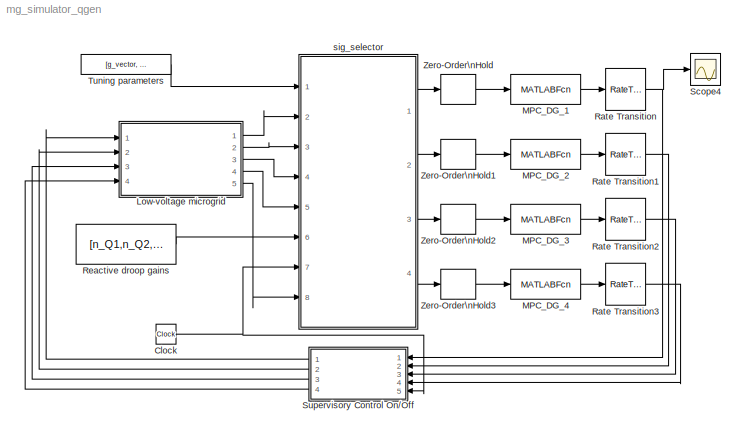
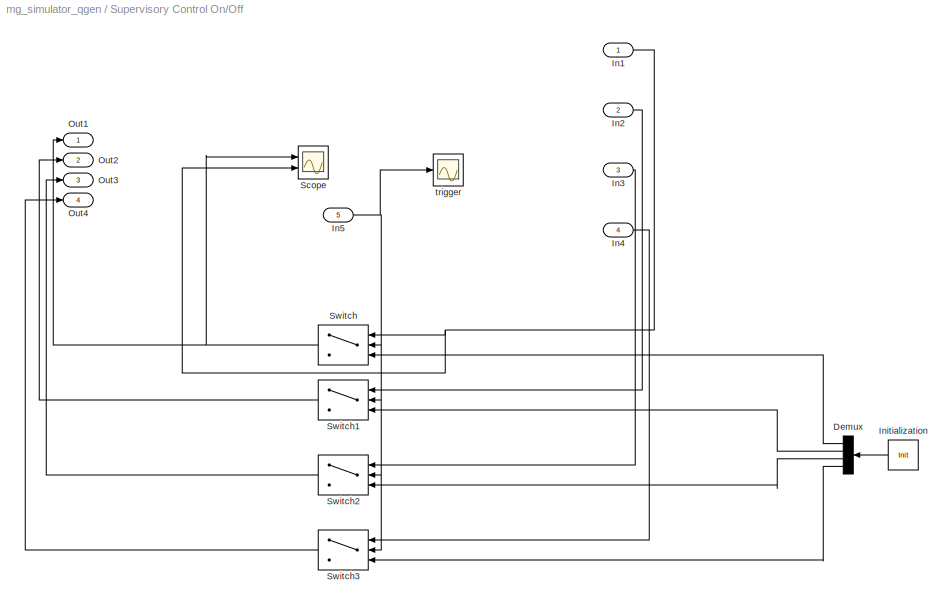
MODEL mg_simulator_qgen
KIND model
CONFIG InitFcn = mg_simulator_init
BLOCK [Clock] Clock
  SID = 163
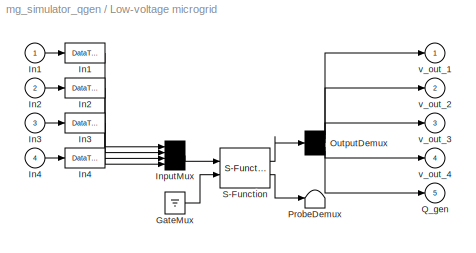
BLOCK [SubSystem] Low-voltage microgrid
  CopyFcn = plecs('sl', 203);
  DeleteFcn = plecs('sl', 205);
  DestroyFcn = plecs('sl', 207);
  ErrorFcn = plerrorfcn
  InitFcn = plecs('sl', 214);
  LoadFcn = plecs('sl', 200);
  NameChangeFcn = plecs('sl', 210);
  OpenFcn = plecs('sl', 202);
  Ports = [4, 5]
  PostSaveFcn = plecs('sl', 201);
  PreCopyFcn = plecs('sl', 216);
  PreSaveFcn = plecs('sl', 211);
  RequestExecContextInheritance = off
  SID = 1
  StartFcn = plecs('sl', 208);
  StopFcn = plecs('sl', 209);
  UndoDeleteFcn = plecs('sl', 206);
  Variant = off
BLOCK [Ground] Low-voltage microgrid/ GateMux 
  SID = 1:312
BLOCK [DataTypeConversion] Low-voltage microgrid/ In1 
  SID = 1:1312
BLOCK [DataTypeConversion] Low-voltage microgrid/ In2 
  SID = 1:1313
BLOCK [DataTypeConversion] Low-voltage microgrid/ In3 
  SID = 1:1314
BLOCK [DataTypeConversion] Low-voltage microgrid/ In4 
  SID = 1:1315
BLOCK [Mux] Low-voltage microgrid/ InputMux 
  Inputs = [ 1 1 1 1 ]
  Ports = [4, 1]
  SID = 1:400
BLOCK [Demux] Low-voltage microgrid/ OutputDemux 
  Outputs = [ 1 1 1 1 4 ]
  Ports = [1, 5]
  SID = 1:23
BLOCK [Terminator] Low-voltage microgrid/ ProbeDemux 
  SID = 1:4
BLOCK [S-Function] Low-voltage microgrid/ S-Function 
  EnableBusSupport = off
  FunctionName = plecs
  Ports = [2, 2]
  SFcnIsStateOwnerBlock = off
  SFunctionDeploymentMode = off
  SID = 1:5
BLOCK [Inport] Low-voltage microgrid/In1
  IconDisplay = Port number
  PortDimensions = 1
  SID = 1:399
BLOCK [Inport] Low-voltage microgrid/In2
  IconDisplay = Port number
  Port = 2
  PortDimensions = 1
  SID = 1:410
BLOCK [Inport] Low-voltage microgrid/In3
  IconDisplay = Port number
  Port = 3
  PortDimensions = 1
  SID = 1:411
BLOCK [Inport] Low-voltage microgrid/In4
  IconDisplay = Port number
  Port = 4
  PortDimensions = 1
  SID = 1:412
BLOCK [Outport] Low-voltage microgrid/Q_gen
  IconDisplay = Port number
  Port = 5
  PortDimensions = 4
  SID = 1:939
BLOCK [Outport] Low-voltage microgrid/v_out_1
  IconDisplay = Port number
  PortDimensions = 1
  SID = 1:13
BLOCK [Outport] Low-voltage microgrid/v_out_2
  IconDisplay = Port number
  Port = 2
  PortDimensions = 1
  SID = 1:15
BLOCK [Outport] Low-voltage microgrid/v_out_3
  IconDisplay = Port number
  Port = 3
  PortDimensions = 1
  SID = 1:16
BLOCK [Outport] Low-voltage microgrid/v_out_4
  IconDisplay = Port number
  Port = 4
  PortDimensions = 1
  SID = 1:17
BLOCK [MATLABFcn] MPC_DG_1
  MATLABFcn = mpc_run_nodewise_mdl_fast(u(1),u(2),u(3),u(4),u(5),u(6),u(7),u(8),u(9),u(10),u(11))
  Ports = [1, 1]
  SID = 201
  SampleTime = .02
BLOCK [MATLABFcn] MPC_DG_2
  MATLABFcn = mpc_run_nodewise_mdl_fast2(u(1),u(2:3),u(4:5),u(6),u(7),u(8),u(9),u(10),u(11),u(12),u(13))
  Ports = [1, 1]
  SID = 227
  SampleTime = .02
BLOCK [MATLABFcn] MPC_DG_3
  MATLABFcn = mpc_run_nodewise_mdl_fast2(u(1),u(2:3),u(4:5),u(6),u(7),u(8),u(9),u(10),u(11),u(12),u(13))
  Ports = [1, 1]
  SID = 230
  SampleTime = .02
BLOCK [MATLABFcn] MPC_DG_4
  MATLABFcn = mpc_run_nodewise_mdl_fast(u(1),u(2),u(3),u(4),u(5),u(6),u(7),u(8),u(9),u(10),u(11))
  Ports = [1, 1]
  SID = 233
  SampleTime = .02
BLOCK [RateTransition] Rate Transition
  SID = 226
BLOCK [RateTransition] Rate Transition1
  SID = 228
BLOCK [RateTransition] Rate Transition2
  SID = 231
BLOCK [RateTransition] Rate Transition3
  SID = 234
BLOCK [Constant] Reactive droop gains
  SID = 255
  Value = [n_Q1,n_Q2,n_Q3,n_Q4]
BLOCK [Scope] Scope4
  NumInputPorts = 1
  Ports = [1]
  SID = 221
  ScopeSpecificationString = Simulink.scopes.TimeScopeBlockCfg('CurrentConfiguration', extmgr.ConfigurationSet(extmgr.Configuration('Core','General UI',true),extmgr.Configuration('Core','Source UI',true),extmgr.Configuration('Sources','WiredSimulink',true,'DataLoggingVariableName','ScopeData4'),extmgr.Configuration('Visuals','Time Domain',true,'SerializedDisplays',{struct('MinYLimReal','294.47303','MaxYLimReal','295.42278','Y...<+1460ch>
BLOCK [SubSystem] Supervisory Control On//Off
  Ports = [5, 4]
  RequestExecContextInheritance = off
  SID = 242
  Variant = off
BLOCK [Demux] Supervisory Control On//Off/Demux
  DisplayOption = bar
  Ports = [1, 4]
  SID = 241
BLOCK [Inport] Supervisory Control On//Off/In1
  IconDisplay = Port number
  SID = 243
BLOCK [Inport] Supervisory Control On//Off/In2
  IconDisplay = Port number
  Port = 2
  SID = 244
BLOCK [Inport] Supervisory Control On//Off/In3
  IconDisplay = Port number
  Port = 3
  SID = 245
BLOCK [Inport] Supervisory Control On//Off/In4
  IconDisplay = Port number
  Port = 4
  SID = 246
BLOCK [Inport] Supervisory Control On//Off/In5
  IconDisplay = Port number
  Port = 5
  SID = 247
BLOCK [Constant] Supervisory Control On//Off/Initialization
  SID = 240
  Value = Init
BLOCK [Outport] Supervisory Control On//Off/Out1
  IconDisplay = Port number
  SID = 248
BLOCK [Outport] Supervisory Control On//Off/Out2
  IconDisplay = Port number
  Port = 2
  SID = 249
BLOCK [Outport] Supervisory Control On//Off/Out3
  IconDisplay = Port number
  Port = 3
  SID = 250
BLOCK [Outport] Supervisory Control On//Off/Out4
  IconDisplay = Port number
  Port = 4
  SID = 251
BLOCK [Scope] Supervisory Control On//Off/Scope
  NumInputPorts = 2
  Ports = [2]
  SID = 315
  ScopeSpecificationString = Simulink.scopes.TimeScopeBlockCfg('CurrentConfiguration', extmgr.ConfigurationSet(extmgr.Configuration('Core','General UI',true),extmgr.Configuration('Core','Source UI',true),extmgr.Configuration('Sources','WiredSimulink',true,'DataLoggingVariableName','ScopeData1'),extmgr.Configuration('Visuals','Time Domain',true,'SerializedDisplays',{struct('MinYLimReal','-150.88785','MaxYLimReal','1357.99067',...<+1437ch>
BLOCK [Switch] Supervisory Control On//Off/Switch
  InputSameDT = off
  SID = 236
  SaturateOnIntegerOverflow = off
  Threshold = Thresh
BLOCK [Switch] Supervisory Control On//Off/Switch1
  InputSameDT = off
  SID = 237
  SaturateOnIntegerOverflow = off
  Threshold = Thresh
BLOCK [Switch] Supervisory Control On//Off/Switch2
  InputSameDT = off
  SID = 238
  SaturateOnIntegerOverflow = off
  Threshold = Thresh
BLOCK [Switch] Supervisory Control On//Off/Switch3
  InputSameDT = off
  SID = 239
  SaturateOnIntegerOverflow = off
  Threshold = Thresh
BLOCK [Scope] Supervisory Control On//Off/trigger
  NumInputPorts = 1
  Ports = [1]
  SID = 314
  ScopeSpecificationString = Simulink.scopes.TimeScopeBlockCfg('CurrentConfiguration', extmgr.ConfigurationSet(extmgr.Configuration('Core','General UI',true),extmgr.Configuration('Core','Source UI',true),extmgr.Configuration('Sources','WiredSimulink',true,'DataLoggingVariableName','ScopeData3'),extmgr.Configuration('Visuals','Time Domain',true,'SerializedDisplays',{struct('MinYLimReal','-0.00118','MaxYLimReal','0.01064','YLab...<+1391ch>
BLOCK [Constant] Tuning parameters
  SID = 15
  Value = [g_vector, N, v_ref, Ts, Q, R, W]
BLOCK [ZeroOrderHold] Zero-Order\nHold
  SID = 224
  SampleTime = -1
BLOCK [ZeroOrderHold] Zero-Order\nHold1
  SID = 229
  SampleTime = -1
BLOCK [ZeroOrderHold] Zero-Order\nHold2
  SID = 232
  SampleTime = -1
BLOCK [ZeroOrderHold] Zero-Order\nHold3
  SID = 235
  SampleTime = -1
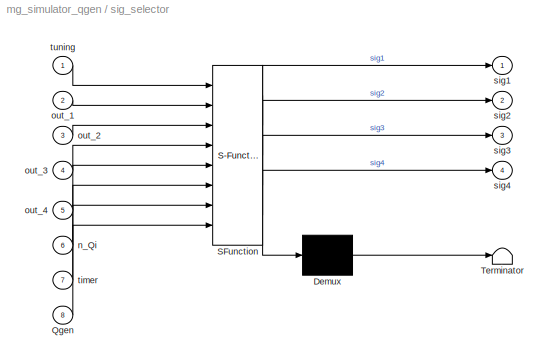
BLOCK [SubSystem] sig_selector
  ErrorFcn = Stateflow.Translate.translate
  PermitHierarchicalResolution = ExplicitOnly
  Ports = [8, 4]
  RequestExecContextInheritance = off
  SFBlockType = MATLAB Function
  SID = 200
  TreatAsAtomicUnit = on
  Variant = off
BLOCK [Demux] sig_selector/ Demux 
  Outputs = 1
  Ports = [1, 1]
  SID = 200::32
BLOCK [S-Function] sig_selector/ SFunction 
  EnableBusSupport = on
  FunctionName = sf_sfun
  PortCounts = [8 5]
  Ports = [8, 5]
  SFcnIsStateOwnerBlock = off
  SFunctionDeploymentMode = off
  SID = 200::31
  Tag = Stateflow S-Function mg_simulator_qgen 2
BLOCK [Terminator] sig_selector/ Terminator 
  SID = 200::33
BLOCK [Inport] sig_selector/Qgen
  IconDisplay = Port number
  Port = 8
  SID = 200::37
BLOCK [Inport] sig_selector/n_Qi
  IconDisplay = Port number
  Port = 6
  SID = 200::36
BLOCK [Inport] sig_selector/out_1
  IconDisplay = Port number
  Port = 2
  SID = 200::23
BLOCK [Inport] sig_selector/out_2
  IconDisplay = Port number
  Port = 3
  SID = 200::24
BLOCK [Inport] sig_selector/out_3
  IconDisplay = Port number
  Port = 4
  SID = 200::25
BLOCK [Inport] sig_selector/out_4
  IconDisplay = Port number
  Port = 5
  SID = 200::26
BLOCK [Outport] sig_selector/sig1
  IconDisplay = Port number
  SID = 200::5
BLOCK [Outport] sig_selector/sig2
  IconDisplay = Port number
  Port = 2
  SID = 200::27
BLOCK [Outport] sig_selector/sig3
  IconDisplay = Port number
  Port = 3
  SID = 200::28
BLOCK [Outport] sig_selector/sig4
  IconDisplay = Port number
  Port = 4
  SID = 200::29
BLOCK [Inport] sig_selector/timer
  IconDisplay = Port number
  Port = 7
  SID = 200::30
BLOCK [Inport] sig_selector/tuning
  IconDisplay = Port number
  SID = 200::22
NET Clock:1 -> Supervisory Control On//Off:5, sig_selector:7
LINE Low-voltage microgrid/ GateMux :1 -> Low-voltage microgrid/ S-Function :2
LINE Low-voltage microgrid/ In1 :1 -> Low-voltage microgrid/ InputMux :1
LINE Low-voltage microgrid/ In2 :1 -> Low-voltage microgrid/ InputMux :2
LINE Low-voltage microgrid/ In3 :1 -> Low-voltage microgrid/ InputMux :3
LINE Low-voltage microgrid/ In4 :1 -> Low-voltage microgrid/ InputMux :4
LINE Low-voltage microgrid/ InputMux :1 -> Low-voltage microgrid/ S-Function :1
LINE Low-voltage microgrid/ OutputDemux :1 -> Low-voltage microgrid/v_out_1:1
LINE Low-voltage microgrid/ OutputDemux :2 -> Low-voltage microgrid/v_out_2:1
LINE Low-voltage microgrid/ OutputDemux :3 -> Low-voltage microgrid/v_out_3:1
LINE Low-voltage microgrid/ OutputDemux :4 -> Low-voltage microgrid/v_out_4:1
LINE Low-voltage microgrid/ OutputDemux :5 -> Low-voltage microgrid/Q_gen:1
LINE Low-voltage microgrid/ S-Function :1 -> Low-voltage microgrid/ OutputDemux :1
LINE Low-voltage microgrid/ S-Function :2 -> Low-voltage microgrid/ ProbeDemux :1
LINE Low-voltage microgrid/In1:1 -> Low-voltage microgrid/ In1 :1
LINE Low-voltage microgrid/In2:1 -> Low-voltage microgrid/ In2 :1
LINE Low-voltage microgrid/In3:1 -> Low-voltage microgrid/ In3 :1
LINE Low-voltage microgrid/In4:1 -> Low-voltage microgrid/ In4 :1
LINE Low-voltage microgrid:1 -> sig_selector:2
LINE Low-voltage microgrid:2 -> sig_selector:3
LINE Low-voltage microgrid:3 -> sig_selector:4
LINE Low-voltage microgrid:4 -> sig_selector:5
LINE Low-voltage microgrid:5 -> sig_selector:8
LINE MPC_DG_1:1 -> Rate Transition:1
LINE MPC_DG_2:1 -> Rate Transition1:1
LINE MPC_DG_3:1 -> Rate Transition2:1
LINE MPC_DG_4:1 -> Rate Transition3:1
LINE Rate Transition1:1 -> Supervisory Control On//Off:2
LINE Rate Transition2:1 -> Supervisory Control On//Off:3
LINE Rate Transition3:1 -> Supervisory Control On//Off:4
NET Rate Transition:1 -> Scope4:1, Supervisory Control On//Off:1
LINE Reactive droop gains:1 -> sig_selector:6
LINE Supervisory Control On//Off/Demux:1 -> Supervisory Control On//Off/Switch:3
LINE Supervisory Control On//Off/Demux:2 -> Supervisory Control On//Off/Switch1:3
LINE Supervisory Control On//Off/Demux:3 -> Supervisory Control On//Off/Switch2:3
LINE Supervisory Control On//Off/Demux:4 -> Supervisory Control On//Off/Switch3:3
NET Supervisory Control On//Off/In1:1 -> Supervisory Control On//Off/Scope:2, Supervisory Control On//Off/Switch:1
LINE Supervisory Control On//Off/In2:1 -> Supervisory Control On//Off/Switch1:1
LINE Supervisory Control On//Off/In3:1 -> Supervisory Control On//Off/Switch2:1
LINE Supervisory Control On//Off/In4:1 -> Supervisory Control On//Off/Switch3:1
NET Supervisory Control On//Off/In5:1 -> Supervisory Control On//Off/Switch1:2, Supervisory Control On//Off/Switch2:2, Supervisory Control On//Off/Switch3:2, Supervisory Control On//Off/Switch:2, Supervisory Control On//Off/trigger:1
LINE Supervisory Control On//Off/Initialization:1 -> Supervisory Control On//Off/Demux:1
LINE Supervisory Control On//Off/Switch1:1 -> Supervisory Control On//Off/Out2:1
LINE Supervisory Control On//Off/Switch2:1 -> Supervisory Control On//Off/Out3:1
LINE Supervisory Control On//Off/Switch3:1 -> Supervisory Control On//Off/Out4:1
NET Supervisory Control On//Off/Switch:1 -> Supervisory Control On//Off/Out1:1, Supervisory Control On//Off/Scope:1
LINE Supervisory Control On//Off:1 -> Low-voltage microgrid:1
LINE Supervisory Control On//Off:2 -> Low-voltage microgrid:2
LINE Supervisory Control On//Off:3 -> Low-voltage microgrid:3
LINE Supervisory Control On//Off:4 -> Low-voltage microgrid:4
LINE Tuning parameters:1 -> sig_selector:1
LINE Zero-Order\nHold1:1 -> MPC_DG_2:1
LINE Zero-Order\nHold2:1 -> MPC_DG_3:1
LINE Zero-Order\nHold3:1 -> MPC_DG_4:1
LINE Zero-Order\nHold:1 -> MPC_DG_1:1
LINE sig_selector/ Demux :1 -> sig_selector/ Terminator :1
LINE sig_selector/ SFunction :1 -> sig_selector/ Demux :1
LINE sig_selector/ SFunction :2 -> sig_selector/sig1:1
LINE sig_selector/ SFunction :3 -> sig_selector/sig2:1
LINE sig_selector/ SFunction :4 -> sig_selector/sig3:1
LINE sig_selector/ SFunction :5 -> sig_selector/sig4:1
LINE sig_selector/Qgen:1 -> sig_selector/ SFunction :8
LINE sig_selector/n_Qi:1 -> sig_selector/ SFunction :6
LINE sig_selector/out_1:1 -> sig_selector/ SFunction :2
LINE sig_selector/out_2:1 -> sig_selector/ SFunction :3
LINE sig_selector/out_3:1 -> sig_selector/ SFunction :4
LINE sig_selector/out_4:1 -> sig_selector/ SFunction :5
LINE sig_selector/timer:1 -> sig_selector/ SFunction :7
LINE sig_selector/tuning:1 -> sig_selector/ SFunction :1
LINE sig_selector:1 -> Zero-Order\nHold:1
LINE sig_selector:2 -> Zero-Order\nHold1:1
LINE sig_selector:3 -> Zero-Order\nHold2:1
LINE sig_selector:4 -> Zero-Order\nHold3:1
note: NET lines group one-source signal fan-out (src -> all destinations, sorted); 1:1 wires keep LINE
CHART sig_selector states=1 transitions=1
  STATE_LABEL 'eML_blk_kernel()'
